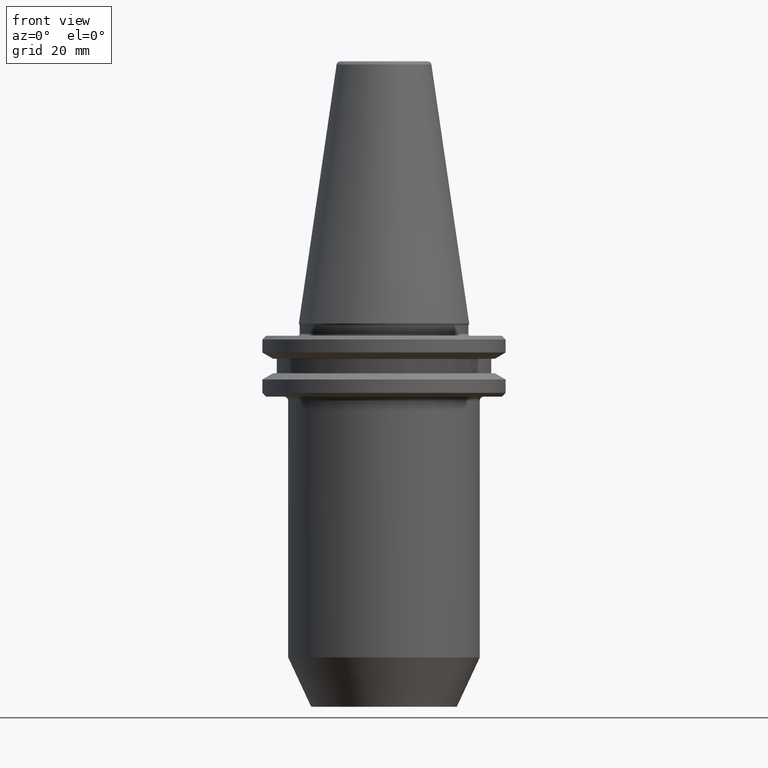
[diagram: clean part render]
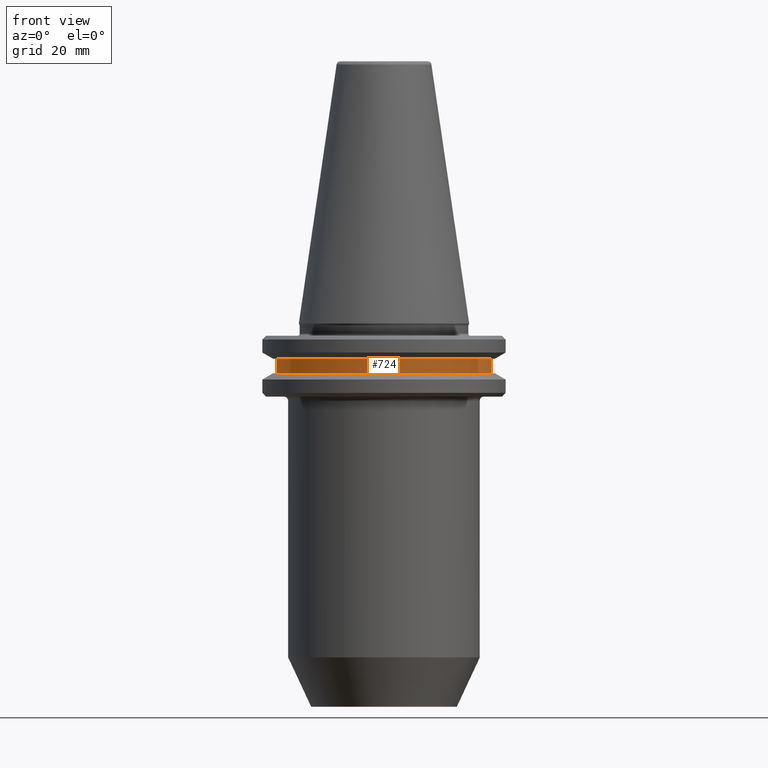
[diagram: same view with one face highlighted and labeled with its STEP entity id]
A machine part, front view. The second image highlights one B-rep face of the part: STEP entity #724.
In plain terms, the highlighted cylindrical surface (partial cylindrical patch) has radius 28 mm, axis along (0, 0, 1).
Its self-contained STEP definition (entity closure, byte-faithful):
#40 = ORIENTED_EDGE ( 'NONE', *, *, #540, .T. ) ;
#51 = CYLINDRICAL_SURFACE ( 'NONE', #920, 28.00000000000000000 ) ;
#65 = VECTOR ( 'NONE', #160, 1000.000000000000000 ) ;
#81 = VERTEX_POINT ( 'NONE', #1194 ) ;
#88 = EDGE_CURVE ( 'NONE', #1134, #81, #846, .T. ) ;
#119 = CARTESIAN_POINT ( 'NONE',  ( 28.00000000000000000, 0.0000000000000000000, -13.00000000000001100 ) ) ;
#134 = CARTESIAN_POINT ( 'NONE',  ( -28.00000000000000000, 3.429011037612589300E-015, 113.5216080541959500 ) ) ;
#160 = DIRECTION ( 'NONE',  ( 0.0000000000000000000, 0.0000000000000000000, 1.000000000000000000 ) ) ;
#242 = VERTEX_POINT ( 'NONE', #655 ) ;
#257 = DIRECTION ( 'NONE',  ( 0.0000000000000000000, 0.0000000000000000000, 1.000000000000000000 ) ) ;
#261 = CARTESIAN_POINT ( 'NONE',  ( 28.00000000000000000, 0.0000000000000000000, 113.5216080541959500 ) ) ;
#285 = EDGE_CURVE ( 'NONE', #1371, #1134, #589, .T. ) ;
#292 = LINE ( 'NONE', #134, #65 ) ;
#307 = ORIENTED_EDGE ( 'NONE', *, *, #285, .T. ) ;
#404 = AXIS2_PLACEMENT_3D ( 'NONE', #459, #1218, #1229 ) ;
#459 = CARTESIAN_POINT ( 'NONE',  ( 0.0000000000000000000, 0.0000000000000000000, -13.00000000000001100 ) ) ;
#540 = EDGE_CURVE ( 'NONE', #242, #1371, #1147, .T. ) ;
#589 = LINE ( 'NONE', #261, #1085 ) ;
#655 = CARTESIAN_POINT ( 'NONE',  ( -28.00000000000000000, 3.429011037612589300E-015, -13.00000000000001100 ) ) ;
#682 = ORIENTED_EDGE ( 'NONE', *, *, #88, .T. ) ;
#724 = ADVANCED_FACE ( 'NONE', ( #1511 ), #51, .T. ) ;
#846 = CIRCLE ( 'NONE', #1300, 28.00000000000000000 ) ;
#898 = CARTESIAN_POINT ( 'NONE',  ( 0.0000000000000000000, 0.0000000000000000000, 113.5216080541959500 ) ) ;
#920 = AXIS2_PLACEMENT_3D ( 'NONE', #898, #1488, #1462 ) ;
#1085 = VECTOR ( 'NONE', #257, 1000.000000000000000 ) ;
#1120 = DIRECTION ( 'NONE',  ( 1.000000000000000000, 0.0000000000000000000, 0.0000000000000000000 ) ) ;
#1128 = DIRECTION ( 'NONE',  ( -0.0000000000000000000, -0.0000000000000000000, -1.000000000000000000 ) ) ;
#1131 = CARTESIAN_POINT ( 'NONE',  ( 0.0000000000000000000, 0.0000000000000000000, -9.200000000000013500 ) ) ;
#1134 = VERTEX_POINT ( 'NONE', #1503 ) ;
#1147 = CIRCLE ( 'NONE', #404, 28.00000000000000000 ) ;
#1194 = CARTESIAN_POINT ( 'NONE',  ( -28.00000000000000000, 3.429011037612589300E-015, -9.200000000000013500 ) ) ;
#1218 = DIRECTION ( 'NONE',  ( 0.0000000000000000000, 0.0000000000000000000, 1.000000000000000000 ) ) ;
#1229 = DIRECTION ( 'NONE',  ( 1.000000000000000000, 0.0000000000000000000, 0.0000000000000000000 ) ) ;
#1236 = EDGE_LOOP ( 'NONE', ( #1334, #40, #307, #682 ) ) ;
#1300 = AXIS2_PLACEMENT_3D ( 'NONE', #1131, #1128, #1120 ) ;
#1307 = EDGE_CURVE ( 'NONE', #242, #81, #292, .T. ) ;
#1334 = ORIENTED_EDGE ( 'NONE', *, *, #1307, .F. ) ;
#1371 = VERTEX_POINT ( 'NONE', #119 ) ;
#1462 = DIRECTION ( 'NONE',  ( 1.000000000000000000, 0.0000000000000000000, 0.0000000000000000000 ) ) ;
#1488 = DIRECTION ( 'NONE',  ( 0.0000000000000000000, 0.0000000000000000000, 1.000000000000000000 ) ) ;
#1503 = CARTESIAN_POINT ( 'NONE',  ( 28.00000000000000000, 0.0000000000000000000, -9.200000000000013500 ) ) ;
#1511 = FACE_OUTER_BOUND ( 'NONE', #1236, .T. ) ;